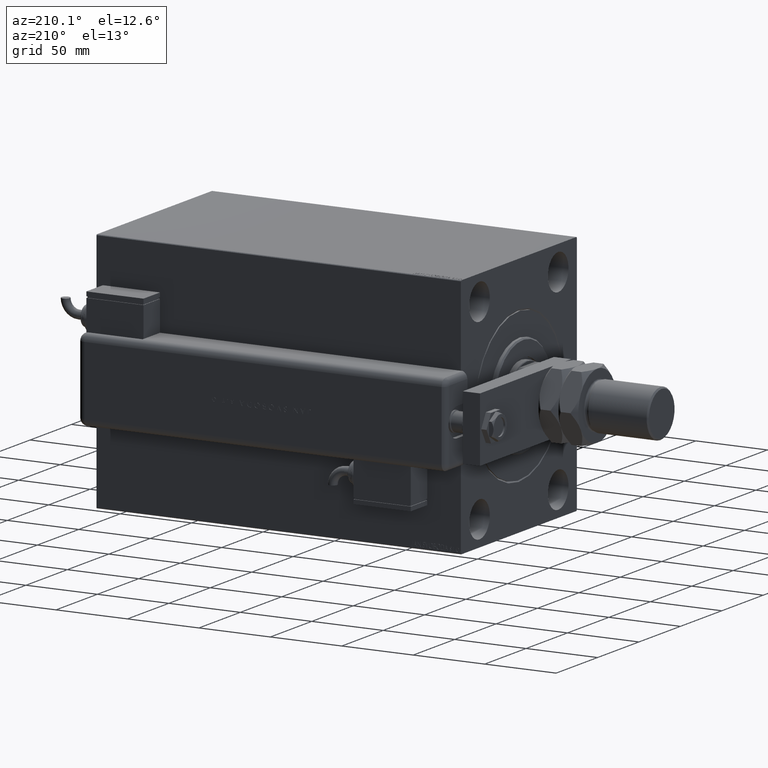
[diagram: clean part render]
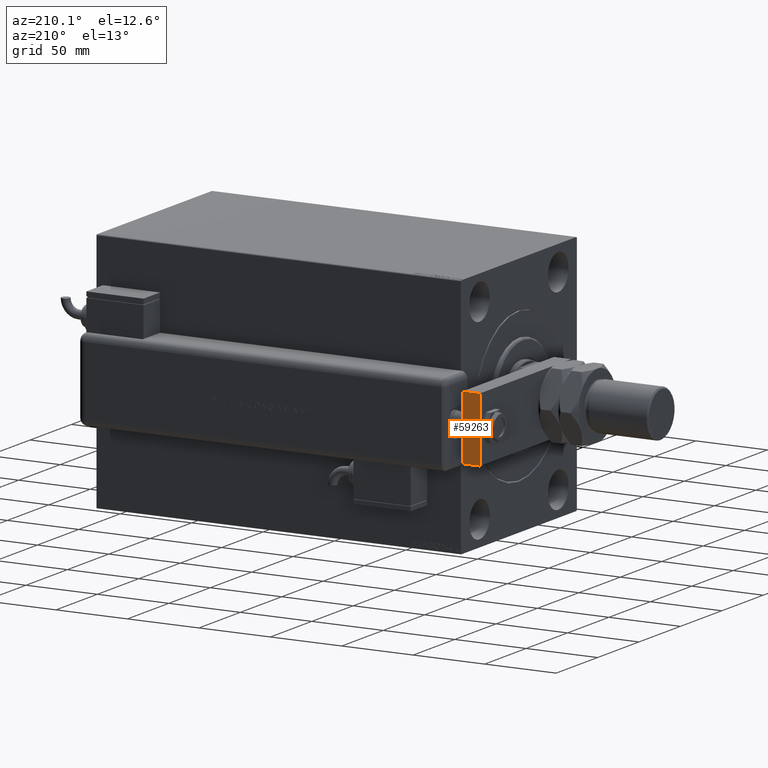
[diagram: same view with one face highlighted and labeled with its STEP entity id]
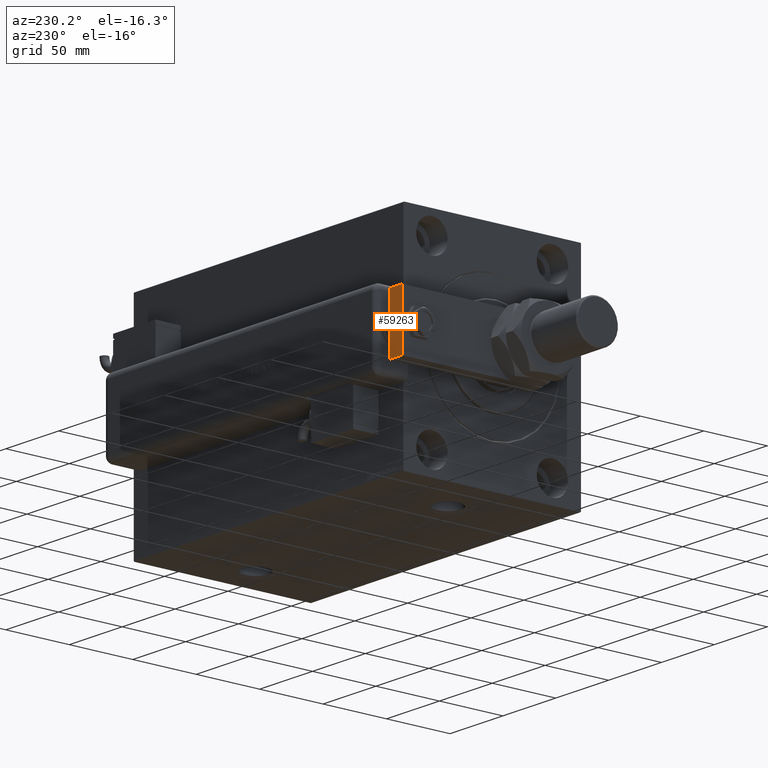
[diagram: same view with one face highlighted and labeled with its STEP entity id]
A machine part, auxiliary view. The second image highlights one B-rep face of the part: STEP entity #59263.
A second angle (auxiliary view) of the same face is appended — the face is thin or edge-on in the first view.
In plain terms, the highlighted planar face has unit normal (0, -1, -0).
Its self-contained STEP definition (entity closure, byte-faithful):
#333 = FACE_OUTER_BOUND ( 'NONE', #28189, .T. ) ;
#5074 = ORIENTED_EDGE ( 'NONE', *, *, #24608, .T. ) ;
#6215 = EDGE_CURVE ( 'NONE', #31768, #25989, #30990, .T. ) ;
#6241 = VECTOR ( 'NONE', #17904, 1000.000000000000000 ) ;
#9684 = DIRECTION ( 'NONE',  ( 0.000000000000000000, -1.000000000000000000, 0.000000000000000000 ) ) ;
#12233 = LINE ( 'NONE', #31204, #46299 ) ;
#14487 = ORIENTED_EDGE ( 'NONE', *, *, #58620, .F. ) ;
#14572 = AXIS2_PLACEMENT_3D ( 'NONE', #42054, #9684, #23077 ) ;
#17904 = DIRECTION ( 'NONE',  ( -0.000000000000000000, -0.000000000000000000, -1.000000000000000000 ) ) ;
#19352 = DIRECTION ( 'NONE',  ( -1.000000000000000000, 0.000000000000000000, 0.000000000000000000 ) ) ;
#23077 = DIRECTION ( 'NONE',  ( 0.000000000000000000, -0.000000000000000000, -1.000000000000000000 ) ) ;
#24608 = EDGE_CURVE ( 'NONE', #37280, #54203, #59270, .T. ) ;
#25989 = VERTEX_POINT ( 'NONE', #44012 ) ;
#26646 = CARTESIAN_POINT ( 'NONE',  ( -22.50000000000000355, 115.0000000000000000, 12.00000000000000000 ) ) ;
#27703 = CARTESIAN_POINT ( 'NONE',  ( 22.50000000000000000, 115.0000000000000000, 0.000000000000000000 ) ) ;
#27769 = LINE ( 'NONE', #56682, #37463 ) ;
#28189 = EDGE_LOOP ( 'NONE', ( #54053, #40332, #14487, #5074 ) ) ;
#30990 = LINE ( 'NONE', #26646, #50807 ) ;
#31204 = CARTESIAN_POINT ( 'NONE',  ( 22.50000000000000000, 115.0000000000000000, 12.00000000000000000 ) ) ;
#31768 = VERTEX_POINT ( 'NONE', #33525 ) ;
#33525 = CARTESIAN_POINT ( 'NONE',  ( -22.50000000000000355, 115.0000000000000000, 12.00000000000000000 ) ) ;
#34175 = CARTESIAN_POINT ( 'NONE',  ( 22.50000000000000000, 115.0000000000000000, 12.00000000000000000 ) ) ;
#37280 = VERTEX_POINT ( 'NONE', #34175 ) ;
#37463 = VECTOR ( 'NONE', #19352, 1000.000000000000000 ) ;
#38115 = EDGE_CURVE ( 'NONE', #54203, #25989, #27769, .T. ) ;
#40332 = ORIENTED_EDGE ( 'NONE', *, *, #6215, .F. ) ;
#41217 = CARTESIAN_POINT ( 'NONE',  ( 22.50000000000000000, 115.0000000000000000, 12.00000000000000000 ) ) ;
#42054 = CARTESIAN_POINT ( 'NONE',  ( 22.50000000000000000, 115.0000000000000000, 12.00000000000000000 ) ) ;
#44012 = CARTESIAN_POINT ( 'NONE',  ( -22.50000000000000355, 115.0000000000000000, 0.000000000000000000 ) ) ;
#46299 = VECTOR ( 'NONE', #54552, 1000.000000000000000 ) ;
#47326 = PLANE ( 'NONE',  #14572 ) ;
#50807 = VECTOR ( 'NONE', #59011, 1000.000000000000000 ) ;
#54053 = ORIENTED_EDGE ( 'NONE', *, *, #38115, .T. ) ;
#54203 = VERTEX_POINT ( 'NONE', #27703 ) ;
#54552 = DIRECTION ( 'NONE',  ( -1.000000000000000000, 0.000000000000000000, 0.000000000000000000 ) ) ;
#56682 = CARTESIAN_POINT ( 'NONE',  ( 22.50000000000000000, 115.0000000000000000, 0.000000000000000000 ) ) ;
#58620 = EDGE_CURVE ( 'NONE', #37280, #31768, #12233, .T. ) ;
#59011 = DIRECTION ( 'NONE',  ( -0.000000000000000000, -0.000000000000000000, -1.000000000000000000 ) ) ;
#59263 = ADVANCED_FACE ( 'NONE', ( #333 ), #47326, .F. ) ;
#59270 = LINE ( 'NONE', #41217, #6241 ) ;